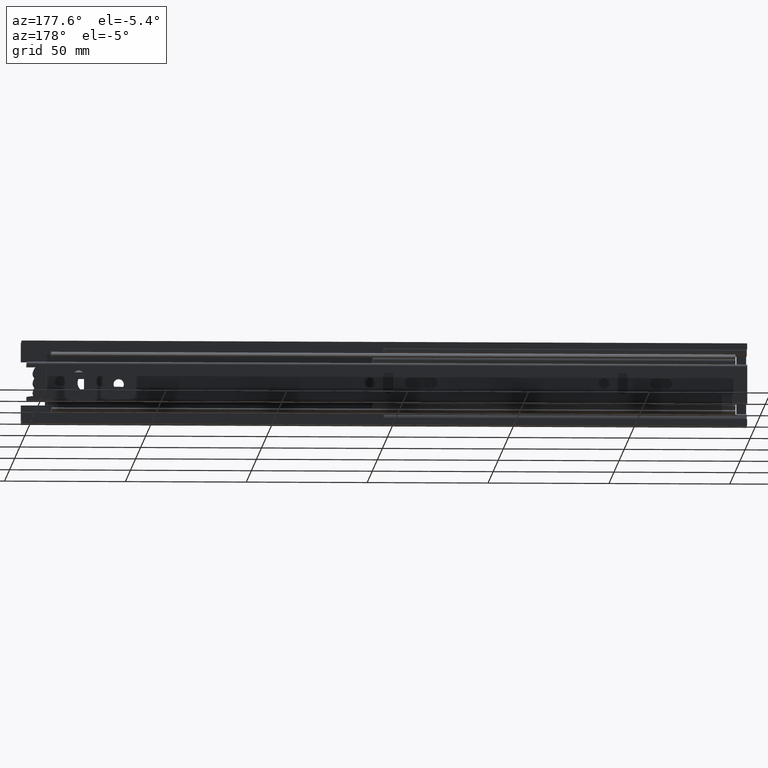
[diagram: clean part render]
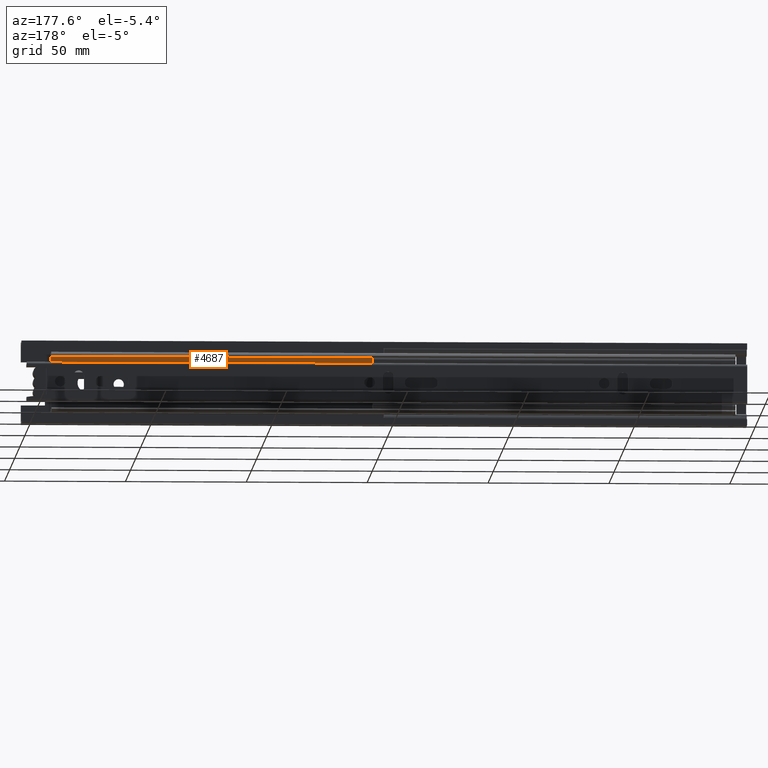
[diagram: same view with one face highlighted and labeled with its STEP entity id]
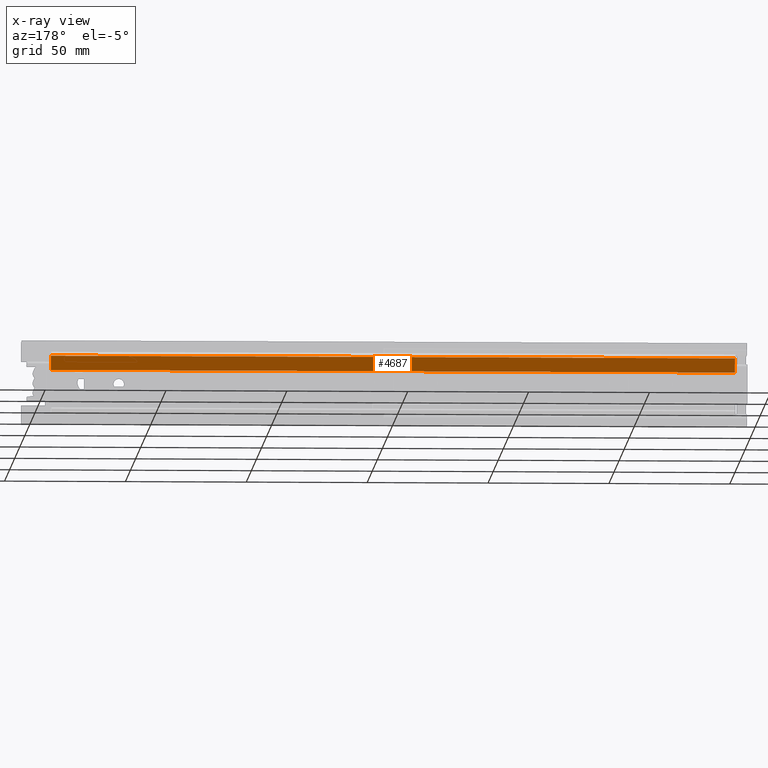
[diagram: x-ray of the same camera — body ghosted, the highlighted face saturated]
A machine part, auxiliary view. The second image highlights one B-rep face of the part: STEP entity #4687.
The next image is the same camera in x-ray: the body ghosted, the highlighted face saturated — about 0% of this face is hidden behind the body in this view.
In plain terms, the highlighted planar face has unit normal (0, 1, -0).
Its self-contained STEP definition (entity closure, byte-faithful):
#362=FACE_OUTER_BOUND('',#641,.T.);
#641=EDGE_LOOP('',(#3888,#3889,#3890,#3891));
#1024=LINE('',#7353,#1514);
#1051=LINE('',#7417,#1541);
#1067=LINE('',#7456,#1557);
#1068=LINE('',#7458,#1558);
#1514=VECTOR('',#5976,5.9);
#1541=VECTOR('',#6037,5.9);
#1557=VECTOR('',#6081,283.);
#1558=VECTOR('',#6084,283.);
#2179=VERTEX_POINT('',#7350);
#2180=VERTEX_POINT('',#7352);
#2199=VERTEX_POINT('',#7414);
#2200=VERTEX_POINT('',#7416);
#2751=EDGE_CURVE('',#2179,#2180,#1024,.T.);
#2783=EDGE_CURVE('',#2199,#2200,#1051,.T.);
#2803=EDGE_CURVE('',#2179,#2200,#1067,.T.);
#2804=EDGE_CURVE('',#2180,#2199,#1068,.T.);
#3888=ORIENTED_EDGE('',*,*,#2803,.T.);
#3889=ORIENTED_EDGE('',*,*,#2783,.F.);
#3890=ORIENTED_EDGE('',*,*,#2804,.F.);
#3891=ORIENTED_EDGE('',*,*,#2751,.F.);
#4478=PLANE('',#5056);
#4687=ADVANCED_FACE('',(#362),#4478,.T.);
#5056=AXIS2_PLACEMENT_3D('',#7457,#6082,#6083);
#5976=DIRECTION('',(0.,-5.64520182012791E-16,-1.));
#6037=DIRECTION('',(0.,5.64520182012791E-16,1.));
#6081=DIRECTION('',(1.,0.,0.));
#6082=DIRECTION('center_axis',(0.,1.,-5.64520182012791E-16));
#6083=DIRECTION('ref_axis',(0.,5.77315972805081E-16,1.));
#6084=DIRECTION('',(1.,0.,0.));
#7350=CARTESIAN_POINT('',(-141.5,3.50000000000001,11.45));
#7352=CARTESIAN_POINT('',(-141.5,3.50000000000001,5.55));
#7353=CARTESIAN_POINT('',(-141.5,3.50000000000001,5.55));
#7414=CARTESIAN_POINT('',(141.5,3.50000000000001,5.55));
#7416=CARTESIAN_POINT('',(141.5,3.50000000000001,11.45));
#7417=CARTESIAN_POINT('',(141.5,3.50000000000001,5.55));
#7456=CARTESIAN_POINT('',(0.,3.50000000000001,11.45));
#7457=CARTESIAN_POINT('Origin',(0.,3.50000000000001,5.55));
#7458=CARTESIAN_POINT('',(0.,3.50000000000001,5.55));